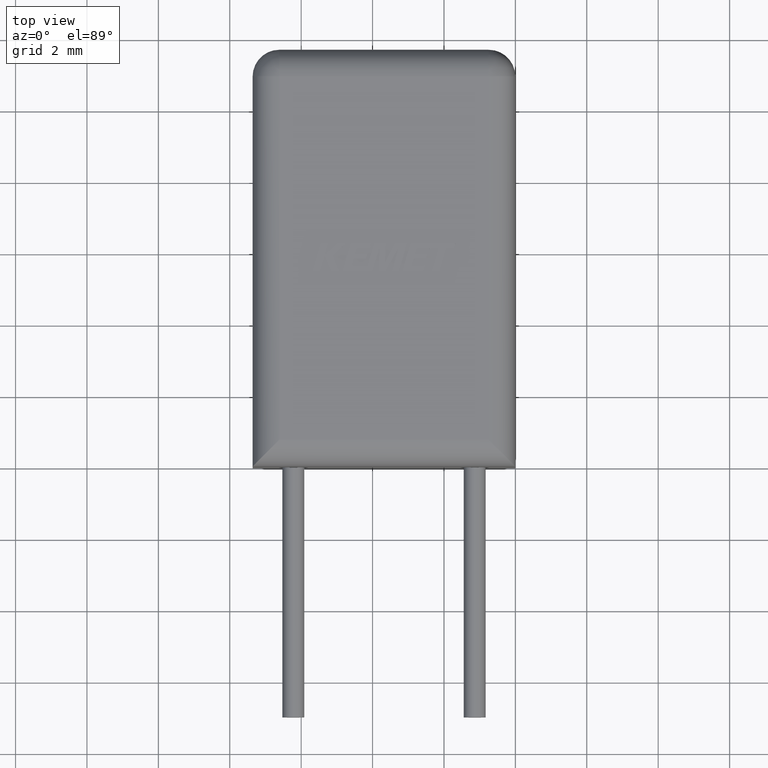
[diagram: clean part render]
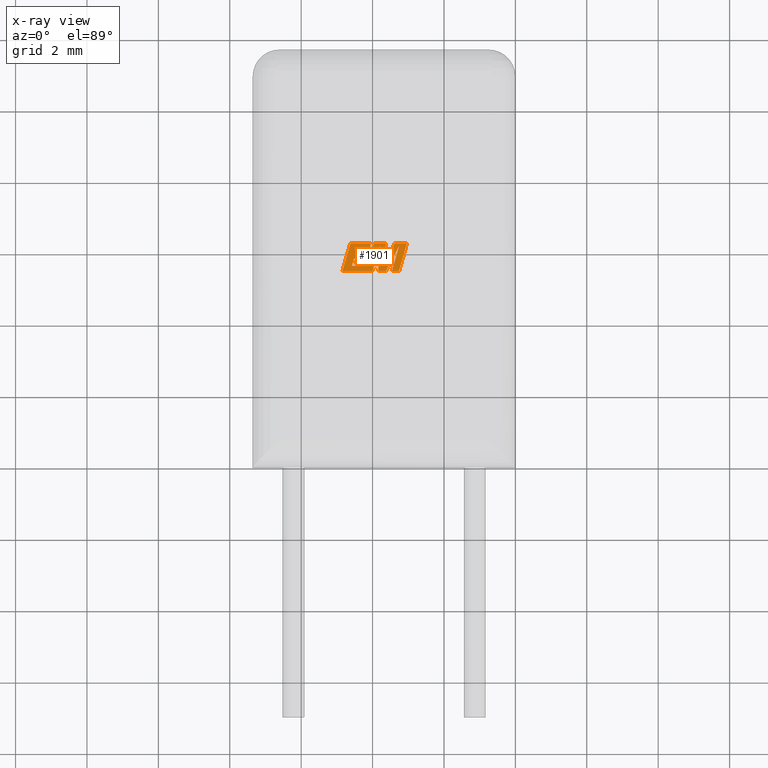
[diagram: x-ray — body ghosted, one internal face saturated and labeled with its STEP entity id]
A machine part, top view, then the same camera in x-ray: the body is ghosted and one INTERNAL B-rep face — a face not visible from any outside direction — is saturated and labeled: STEP entity #1901.
In plain terms, the highlighted planar face has unit normal (0, 0, -1).
Its self-contained STEP definition (entity closure, byte-faithful):
#6 = LINE ( 'NONE', #3297, #742 ) ;
#9 = LINE ( 'NONE', #2216, #1478 ) ;
#22 = DIRECTION ( 'NONE',  ( 1.000000000000000000, 0.0000000000000000000, 0.0000000000000000000 ) ) ;
#83 = CARTESIAN_POINT ( 'NONE',  ( -4.000312440833393000, 5.463903999999998500, 4.070000000000000300 ) ) ;
#92 = LINE ( 'NONE', #1145, #3685 ) ;
#100 = EDGE_CURVE ( 'NONE', #1011, #3382, #2193, .T. ) ;
#188 = EDGE_CURVE ( 'NONE', #3042, #1817, #3110, .T. ) ;
#259 = CARTESIAN_POINT ( 'NONE',  ( -4.145855935407241500, 5.953582669971546600, 4.070000000000000300 ) ) ;
#315 = ORIENTED_EDGE ( 'NONE', *, *, #1665, .F. ) ;
#326 = CARTESIAN_POINT ( 'NONE',  ( -4.440366467501947400, 6.099625133244084700, 4.070000000000000300 ) ) ;
#336 = ORIENTED_EDGE ( 'NONE', *, *, #1420, .F. ) ;
#352 = VECTOR ( 'NONE', #3206, 1000.000000000000200 ) ;
#357 = VECTOR ( 'NONE', #2125, 1000.000000000000100 ) ;
#408 = CARTESIAN_POINT ( 'NONE',  ( -4.144619258564318900, 5.613284058312131300, 4.070000000000000300 ) ) ;
#413 = CARTESIAN_POINT ( 'NONE',  ( -4.620245650710643300, 6.249079201172937000, 4.070000000000000300 ) ) ;
#428 = DIRECTION ( 'NONE',  ( -0.2762517575166408800, -0.9610853065513835800, 0.0000000000000000000 ) ) ;
#437 = DIRECTION ( 'NONE',  ( 1.000000000000000000, 0.0000000000000000000, 0.0000000000000000000 ) ) ;
#440 = CARTESIAN_POINT ( 'NONE',  ( -4.082632622250006400, 6.099625133244084700, 4.070000000000000300 ) ) ;
#487 = EDGE_LOOP ( 'NONE', ( #2615, #315, #2387, #3086, #2176, #1015, #2667, #1652, #2436, #1211, #3125, #2204, #1775, #1585, #1878, #2599, #336, #3419, #1945, #1704, #2488, #670, #3027 ) ) ;
#493 = EDGE_CURVE ( 'NONE', #3065, #3356, #3492, .T. ) ;
#498 = CARTESIAN_POINT ( 'NONE',  ( -4.082632622250006400, 6.099625133244084700, 4.070000000000000300 ) ) ;
#520 = CARTESIAN_POINT ( 'NONE',  ( -4.187315646014348600, 5.808430709523683800, 4.070000000000000300 ) ) ;
#568 = EDGE_CURVE ( 'NONE', #1679, #2124, #2407, .T. ) ;
#581 = CARTESIAN_POINT ( 'NONE',  ( -3.460374077917588200, 5.463903999999998500, 4.070000000000000300 ) ) ;
#591 = DIRECTION ( 'NONE',  ( -1.000000000000000000, 0.0000000000000000000, 0.0000000000000000000 ) ) ;
#602 = CARTESIAN_POINT ( 'NONE',  ( -3.035105262400498400, 6.249079201172937000, 4.070000000000000300 ) ) ;
#606 = DIRECTION ( 'NONE',  ( 0.0000000000000000000, 0.0000000000000000000, -1.000000000000000000 ) ) ;
#617 = EDGE_CURVE ( 'NONE', #1817, #721, #1369, .T. ) ;
#618 = LINE ( 'NONE', #1925, #3564 ) ;
#642 = AXIS2_PLACEMENT_3D ( 'NONE', #3432, #606, #591 ) ;
#655 = CARTESIAN_POINT ( 'NONE',  ( -3.379477765441183400, 6.249079201172937000, 4.070000000000000300 ) ) ;
#669 = CARTESIAN_POINT ( 'NONE',  ( -3.838785255517836800, 5.463903999999998500, 4.070000000000000300 ) ) ;
#670 = ORIENTED_EDGE ( 'NONE', *, *, #3350, .F. ) ;
#696 = EDGE_CURVE ( 'NONE', #2885, #1570, #3402, .T. ) ;
#701 = DIRECTION ( 'NONE',  ( 0.2793947940878359100, 0.9601763114327575000, 0.0000000000000000000 ) ) ;
#721 = VERTEX_POINT ( 'NONE', #1380 ) ;
#742 = VECTOR ( 'NONE', #437, 1000.000000000000000 ) ;
#798 = DIRECTION ( 'NONE',  ( 0.2732148821746193700, 0.9619530280415508100, 0.0000000000000000000 ) ) ;
#818 = CARTESIAN_POINT ( 'NONE',  ( -4.187315646014348600, 5.808430709523683800, 4.070000000000000300 ) ) ;
#894 = VERTEX_POINT ( 'NONE', #2345 ) ;
#914 = VECTOR ( 'NONE', #3598, 1000.000000000000200 ) ;
#929 = CARTESIAN_POINT ( 'NONE',  ( -4.144619258564318900, 5.613284058312131300, 4.070000000000000300 ) ) ;
#932 = LINE ( 'NONE', #2553, #3379 ) ;
#934 = DIRECTION ( 'NONE',  ( 1.000000000000000000, 0.0000000000000000000, 0.0000000000000000000 ) ) ;
#958 = EDGE_CURVE ( 'NONE', #1153, #1011, #3693, .T. ) ;
#964 = DIRECTION ( 'NONE',  ( -0.4443210308329548200, -0.8958676361826786200, 0.0000000000000000000 ) ) ;
#973 = VECTOR ( 'NONE', #964, 1000.000000000000000 ) ;
#995 = DIRECTION ( 'NONE',  ( 0.2763139702539144600, 0.9610674221107065000, 0.0000000000000000000 ) ) ;
#1011 = VERTEX_POINT ( 'NONE', #655 ) ;
#1015 = ORIENTED_EDGE ( 'NONE', *, *, #1986, .F. ) ;
#1033 = EDGE_CURVE ( 'NONE', #3267, #3065, #2437, .T. ) ;
#1035 = DIRECTION ( 'NONE',  ( 0.4668459304955085400, 0.8843386665637676900, 0.0000000000000000000 ) ) ;
#1063 = VERTEX_POINT ( 'NONE', #3592 ) ;
#1098 = VECTOR ( 'NONE', #1948, 1000.000000000000000 ) ;
#1106 = LINE ( 'NONE', #1843, #1385 ) ;
#1111 = CARTESIAN_POINT ( 'NONE',  ( -4.524274275229539700, 5.808430709523683800, 4.070000000000000300 ) ) ;
#1133 = PLANE ( 'NONE',  #642 ) ;
#1142 = VECTOR ( 'NONE', #995, 1000.000000000000100 ) ;
#1145 = CARTESIAN_POINT ( 'NONE',  ( -3.657685278034355800, 5.688139949191390900, 4.070000000000000300 ) ) ;
#1153 = VERTEX_POINT ( 'NONE', #1319 ) ;
#1165 = VECTOR ( 'NONE', #2930, 1000.000000000000000 ) ;
#1184 = LINE ( 'NONE', #669, #1228 ) ;
#1211 = ORIENTED_EDGE ( 'NONE', *, *, #3367, .F. ) ;
#1228 = VECTOR ( 'NONE', #2933, 1000.000000000000000 ) ;
#1247 = EDGE_CURVE ( 'NONE', #1063, #1679, #1882, .T. ) ;
#1276 = VECTOR ( 'NONE', #3275, 1000.000000000000000 ) ;
#1288 = CARTESIAN_POINT ( 'NONE',  ( -3.379477765441183400, 6.249079201172937000, 4.070000000000000300 ) ) ;
#1315 = LINE ( 'NONE', #3239, #3278 ) ;
#1319 = CARTESIAN_POINT ( 'NONE',  ( -3.035105262400498400, 6.249079201172937000, 4.070000000000000300 ) ) ;
#1325 = LINE ( 'NONE', #2178, #1550 ) ;
#1351 = CARTESIAN_POINT ( 'NONE',  ( -4.000312440833393000, 5.463903999999998500, 4.070000000000000300 ) ) ;
#1359 = CARTESIAN_POINT ( 'NONE',  ( -3.799603131224843700, 6.162924843426480900, 4.070000000000000300 ) ) ;
#1369 = LINE ( 'NONE', #498, #2361 ) ;
#1380 = CARTESIAN_POINT ( 'NONE',  ( -4.040184525129472300, 6.249079201172937000, 4.070000000000000300 ) ) ;
#1385 = VECTOR ( 'NONE', #701, 1000.000000000000000 ) ;
#1408 = CARTESIAN_POINT ( 'NONE',  ( -4.440366467501947400, 6.099625133244084700, 4.070000000000000300 ) ) ;
#1420 = EDGE_CURVE ( 'NONE', #3356, #2885, #6, .T. ) ;
#1438 = EDGE_CURVE ( 'NONE', #1570, #3334, #9, .T. ) ;
#1473 = CARTESIAN_POINT ( 'NONE',  ( -4.140071248784779300, 5.463903999999998500, 4.070000000000000300 ) ) ;
#1475 = VERTEX_POINT ( 'NONE', #2813 ) ;
#1478 = VECTOR ( 'NONE', #2795, 1000.000000000000000 ) ;
#1487 = CARTESIAN_POINT ( 'NONE',  ( -3.961868024684696500, 6.249079201172937000, 4.070000000000000300 ) ) ;
#1509 = EDGE_CURVE ( 'NONE', #2124, #1475, #2091, .T. ) ;
#1550 = VECTOR ( 'NONE', #1035, 1000.000000000000200 ) ;
#1570 = VERTEX_POINT ( 'NONE', #259 ) ;
#1585 = ORIENTED_EDGE ( 'NONE', *, *, #3563, .F. ) ;
#1650 = CARTESIAN_POINT ( 'NONE',  ( -4.482862312763144200, 5.953582669971546600, 4.070000000000000300 ) ) ;
#1652 = ORIENTED_EDGE ( 'NONE', *, *, #568, .F. ) ;
#1665 = EDGE_CURVE ( 'NONE', #2860, #1153, #2038, .T. ) ;
#1679 = VERTEX_POINT ( 'NONE', #83 ) ;
#1692 = CARTESIAN_POINT ( 'NONE',  ( -3.260848922199653700, 5.463903999999998500, 4.070000000000000300 ) ) ;
#1704 = ORIENTED_EDGE ( 'NONE', *, *, #2156, .F. ) ;
#1742 = VERTEX_POINT ( 'NONE', #413 ) ;
#1775 = ORIENTED_EDGE ( 'NONE', *, *, #188, .F. ) ;
#1817 = VERTEX_POINT ( 'NONE', #440 ) ;
#1843 = CARTESIAN_POINT ( 'NONE',  ( -4.482862312763144200, 5.953582669971546600, 4.070000000000000300 ) ) ;
#1854 = EDGE_CURVE ( 'NONE', #1910, #2476, #1325, .T. ) ;
#1878 = ORIENTED_EDGE ( 'NONE', *, *, #1438, .F. ) ;
#1882 = LINE ( 'NONE', #1473, #2864 ) ;
#1901 = ADVANCED_FACE ( 'NONE', ( #1904 ), #1133, .T. ) ;
#1904 = FACE_OUTER_BOUND ( 'NONE', #487, .T. ) ;
#1910 = VERTEX_POINT ( 'NONE', #2626 ) ;
#1912 = VECTOR ( 'NONE', #3092, 1000.000000000000200 ) ;
#1925 = CARTESIAN_POINT ( 'NONE',  ( -3.627489685006438400, 6.249079201172937000, 4.070000000000000300 ) ) ;
#1945 = ORIENTED_EDGE ( 'NONE', *, *, #1033, .F. ) ;
#1948 = DIRECTION ( 'NONE',  ( 1.000000000000000000, 0.0000000000000000000, 0.0000000000000000000 ) ) ;
#1986 = EDGE_CURVE ( 'NONE', #1475, #1910, #1184, .T. ) ;
#2038 = LINE ( 'NONE', #2722, #1142 ) ;
#2091 = LINE ( 'NONE', #1359, #1912 ) ;
#2119 = LINE ( 'NONE', #2472, #352 ) ;
#2124 = VERTEX_POINT ( 'NONE', #2957 ) ;
#2125 = DIRECTION ( 'NONE',  ( 0.2740217765954073300, 0.9617234872620594700, 0.0000000000000000000 ) ) ;
#2127 = EDGE_CURVE ( 'NONE', #721, #1742, #2173, .T. ) ;
#2156 = EDGE_CURVE ( 'NONE', #2421, #3267, #1315, .T. ) ;
#2173 = LINE ( 'NONE', #2736, #1276 ) ;
#2176 = ORIENTED_EDGE ( 'NONE', *, *, #1854, .F. ) ;
#2178 = CARTESIAN_POINT ( 'NONE',  ( -3.629464568726682200, 5.463903999999998500, 4.070000000000000300 ) ) ;
#2193 = LINE ( 'NONE', #1288, #973 ) ;
#2204 = ORIENTED_EDGE ( 'NONE', *, *, #617, .F. ) ;
#2216 = CARTESIAN_POINT ( 'NONE',  ( -4.145855935407241500, 5.953582669971546600, 4.070000000000000300 ) ) ;
#2345 = CARTESIAN_POINT ( 'NONE',  ( -3.460374077917588200, 5.463903999999998500, 4.070000000000000300 ) ) ;
#2361 = VECTOR ( 'NONE', #798, 1000.000000000000200 ) ;
#2387 = ORIENTED_EDGE ( 'NONE', *, *, #3385, .F. ) ;
#2407 = LINE ( 'NONE', #1351, #914 ) ;
#2421 = VERTEX_POINT ( 'NONE', #1487 ) ;
#2436 = ORIENTED_EDGE ( 'NONE', *, *, #1247, .F. ) ;
#2437 = LINE ( 'NONE', #929, #1165 ) ;
#2472 = CARTESIAN_POINT ( 'NONE',  ( -3.258671606981883100, 6.166291087347180300, 4.070000000000000300 ) ) ;
#2476 = VERTEX_POINT ( 'NONE', #3705 ) ;
#2488 = ORIENTED_EDGE ( 'NONE', *, *, #3302, .F. ) ;
#2553 = CARTESIAN_POINT ( 'NONE',  ( -4.620245650710643300, 6.249079201172937000, 4.070000000000000300 ) ) ;
#2599 = ORIENTED_EDGE ( 'NONE', *, *, #696, .F. ) ;
#2603 = CARTESIAN_POINT ( 'NONE',  ( -3.657685278034355800, 5.688139949191390900, 4.070000000000000300 ) ) ;
#2615 = ORIENTED_EDGE ( 'NONE', *, *, #958, .F. ) ;
#2626 = CARTESIAN_POINT ( 'NONE',  ( -3.629464568726682200, 5.463903999999998500, 4.070000000000000300 ) ) ;
#2667 = ORIENTED_EDGE ( 'NONE', *, *, #1509, .F. ) ;
#2676 = EDGE_CURVE ( 'NONE', #2476, #894, #2119, .T. ) ;
#2722 = CARTESIAN_POINT ( 'NONE',  ( -3.260848922199653700, 5.463903999999998500, 4.070000000000000300 ) ) ;
#2736 = CARTESIAN_POINT ( 'NONE',  ( -4.040184525129472300, 6.249079201172937000, 4.070000000000000300 ) ) ;
#2795 = DIRECTION ( 'NONE',  ( -1.000000000000000000, 0.0000000000000000000, 0.0000000000000000000 ) ) ;
#2813 = CARTESIAN_POINT ( 'NONE',  ( -3.838785255517836800, 5.463903999999998500, 4.070000000000000300 ) ) ;
#2836 = VERTEX_POINT ( 'NONE', #3416 ) ;
#2860 = VERTEX_POINT ( 'NONE', #1692 ) ;
#2864 = VECTOR ( 'NONE', #22, 1000.000000000000000 ) ;
#2885 = VERTEX_POINT ( 'NONE', #520 ) ;
#2930 = DIRECTION ( 'NONE',  ( -1.000000000000000000, 0.0000000000000000000, 0.0000000000000000000 ) ) ;
#2933 = DIRECTION ( 'NONE',  ( 1.000000000000000000, 0.0000000000000000000, 0.0000000000000000000 ) ) ;
#2954 = VECTOR ( 'NONE', #3199, 1000.000000000000000 ) ;
#2957 = CARTESIAN_POINT ( 'NONE',  ( -3.799603131224843700, 6.162924843426480900, 4.070000000000000300 ) ) ;
#3027 = ORIENTED_EDGE ( 'NONE', *, *, #100, .F. ) ;
#3042 = VERTEX_POINT ( 'NONE', #326 ) ;
#3065 = VERTEX_POINT ( 'NONE', #3445 ) ;
#3086 = ORIENTED_EDGE ( 'NONE', *, *, #2676, .F. ) ;
#3092 = DIRECTION ( 'NONE',  ( -0.05596501978069389600, -0.9984327301130239100, 0.0000000000000000000 ) ) ;
#3110 = LINE ( 'NONE', #1408, #1098 ) ;
#3125 = ORIENTED_EDGE ( 'NONE', *, *, #2127, .F. ) ;
#3134 = DIRECTION ( 'NONE',  ( -0.2765379750249946600, -0.9610029908221282600, 0.0000000000000000000 ) ) ;
#3155 = DIRECTION ( 'NONE',  ( 0.05375259206908529500, 0.9985542843760946100, 0.0000000000000000000 ) ) ;
#3199 = DIRECTION ( 'NONE',  ( -1.000000000000000000, 0.0000000000000000000, 0.0000000000000000000 ) ) ;
#3206 = DIRECTION ( 'NONE',  ( -0.2760118818968558300, -0.9611542233438690200, 0.0000000000000000000 ) ) ;
#3239 = CARTESIAN_POINT ( 'NONE',  ( -3.961868024684696500, 6.249079201172937000, 4.070000000000000300 ) ) ;
#3267 = VERTEX_POINT ( 'NONE', #408 ) ;
#3275 = DIRECTION ( 'NONE',  ( -1.000000000000000000, 0.0000000000000000000, 0.0000000000000000000 ) ) ;
#3276 = CARTESIAN_POINT ( 'NONE',  ( -4.579876985124740500, 5.613284058312131300, 4.070000000000000300 ) ) ;
#3278 = VECTOR ( 'NONE', #428, 1000.000000000000100 ) ;
#3296 = LINE ( 'NONE', #581, #3509 ) ;
#3297 = CARTESIAN_POINT ( 'NONE',  ( -4.524274275229539700, 5.808430709523683800, 4.070000000000000300 ) ) ;
#3302 = EDGE_CURVE ( 'NONE', #2836, #2421, #618, .T. ) ;
#3334 = VERTEX_POINT ( 'NONE', #1650 ) ;
#3350 = EDGE_CURVE ( 'NONE', #3382, #2836, #92, .T. ) ;
#3356 = VERTEX_POINT ( 'NONE', #1111 ) ;
#3364 = VECTOR ( 'NONE', #3381, 1000.000000000000000 ) ;
#3367 = EDGE_CURVE ( 'NONE', #1742, #1063, #932, .T. ) ;
#3379 = VECTOR ( 'NONE', #3134, 999.9999999999998900 ) ;
#3381 = DIRECTION ( 'NONE',  ( 0.2746459304916987800, 0.9615454294334454500, 0.0000000000000000000 ) ) ;
#3382 = VERTEX_POINT ( 'NONE', #2603 ) ;
#3385 = EDGE_CURVE ( 'NONE', #894, #2860, #3296, .T. ) ;
#3402 = LINE ( 'NONE', #818, #3364 ) ;
#3416 = CARTESIAN_POINT ( 'NONE',  ( -3.627489685006438400, 6.249079201172937000, 4.070000000000000300 ) ) ;
#3419 = ORIENTED_EDGE ( 'NONE', *, *, #493, .F. ) ;
#3432 = CARTESIAN_POINT ( 'NONE',  ( 0.002325967628486955200, 1.147717892871390000, 4.069999999999999400 ) ) ;
#3445 = CARTESIAN_POINT ( 'NONE',  ( -4.579876985124740500, 5.613284058312131300, 4.070000000000000300 ) ) ;
#3492 = LINE ( 'NONE', #3276, #357 ) ;
#3509 = VECTOR ( 'NONE', #934, 1000.000000000000000 ) ;
#3563 = EDGE_CURVE ( 'NONE', #3334, #3042, #1106, .T. ) ;
#3564 = VECTOR ( 'NONE', #3655, 1000.000000000000000 ) ;
#3592 = CARTESIAN_POINT ( 'NONE',  ( -4.846187465924408000, 5.463903999999998500, 4.070000000000000300 ) ) ;
#3598 = DIRECTION ( 'NONE',  ( 0.2759782365590715500, 0.9611638845408960700, 0.0000000000000000000 ) ) ;
#3655 = DIRECTION ( 'NONE',  ( -1.000000000000000000, 0.0000000000000000000, 0.0000000000000000000 ) ) ;
#3685 = VECTOR ( 'NONE', #3155, 1000.000000000000000 ) ;
#3693 = LINE ( 'NONE', #602, #2954 ) ;
#3705 = CARTESIAN_POINT ( 'NONE',  ( -3.258671606981883100, 6.166291087347180300, 4.070000000000000300 ) ) ;